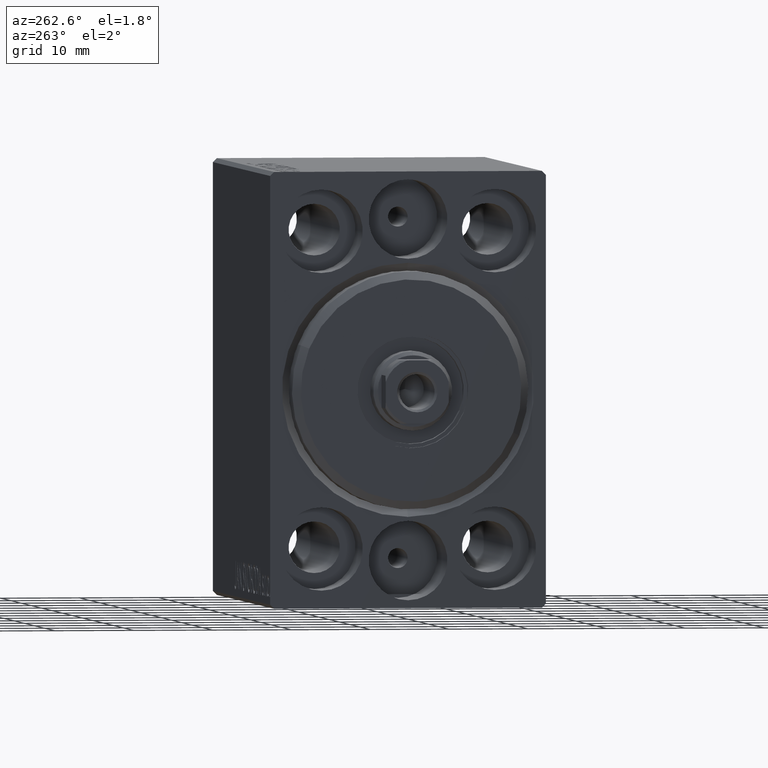
[diagram: clean part render]
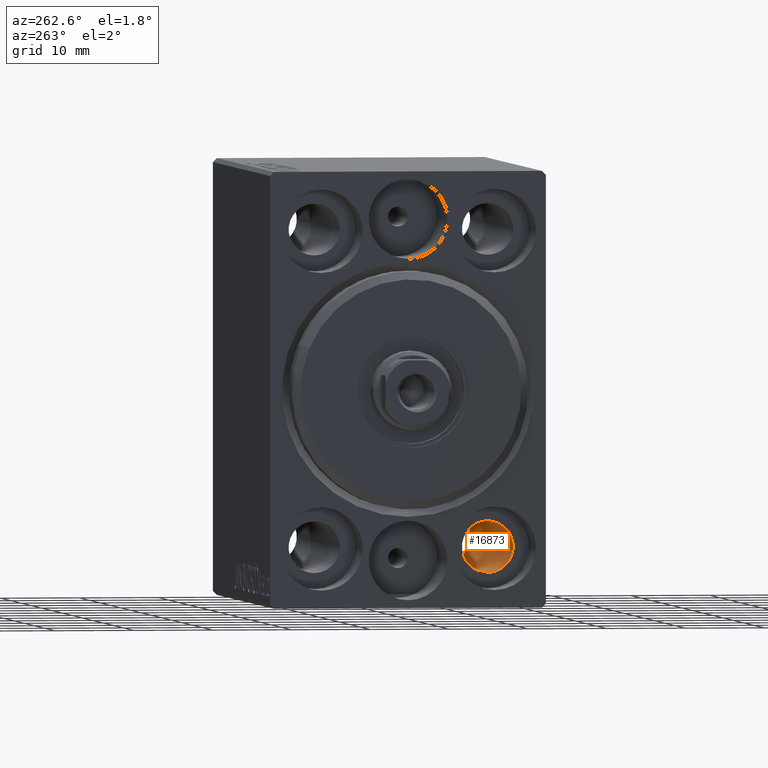
[diagram: same view with one face highlighted and labeled with its STEP entity id]
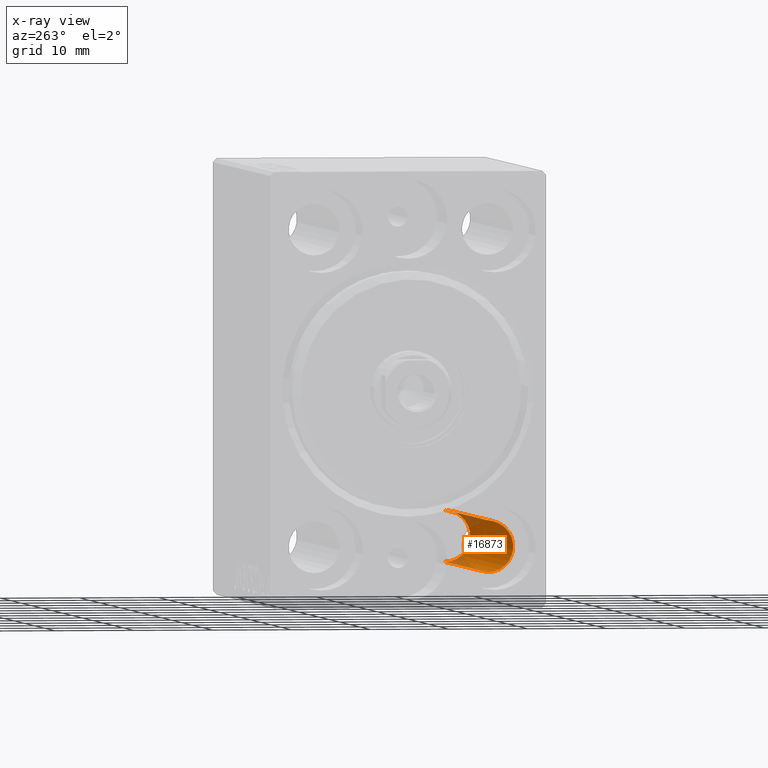
[diagram: x-ray of the same camera — body ghosted, the highlighted face saturated]
A machine part, auxiliary view. The second image highlights one B-rep face of the part: STEP entity #16873.
The next image is the same camera in x-ray: the body ghosted, the highlighted face saturated — about 14% of this face is hidden behind the body in this view.
In plain terms, the highlighted cylindrical surface (edge-blend (fillet) strip) has radius 3.25 mm, axis along (-1, -0, -0).
Its self-contained STEP definition (entity closure, byte-faithful):
#475 = EDGE_LOOP ( 'NONE', ( #12487, #36079, #25126, #38190 ) ) ;
#2554 = VERTEX_POINT ( 'NONE', #29178 ) ;
#4209 = AXIS2_PLACEMENT_3D ( 'NONE', #5182, #12036, #37977 ) ;
#5182 = CARTESIAN_POINT ( 'NONE',  ( 49.00000000000000000, -11.00000000000000355, -20.00000000000000000 ) ) ;
#5517 = DIRECTION ( 'NONE',  ( -1.000000000000000000, -0.000000000000000000, -0.000000000000000000 ) ) ;
#5936 = EDGE_CURVE ( 'NONE', #8876, #13976, #27878, .T. ) ;
#6214 = CYLINDRICAL_SURFACE ( 'NONE', #42567, 3.249999999999999556 ) ;
#8617 = CARTESIAN_POINT ( 'NONE',  ( 56.00000000000000000, -11.00000000000000355, -23.25000000000000000 ) ) ;
#8876 = VERTEX_POINT ( 'NONE', #30111 ) ;
#11030 = CARTESIAN_POINT ( 'NONE',  ( 56.00000000000000000, -11.00000000000000355, -16.75000000000000000 ) ) ;
#12036 = DIRECTION ( 'NONE',  ( -1.000000000000000000, -0.000000000000000000, -0.000000000000000000 ) ) ;
#12487 = ORIENTED_EDGE ( 'NONE', *, *, #28921, .F. ) ;
#12868 = VECTOR ( 'NONE', #5517, 1000.000000000000000 ) ;
#13976 = VERTEX_POINT ( 'NONE', #32333 ) ;
#16616 = CARTESIAN_POINT ( 'NONE',  ( 56.00000000000000000, -11.00000000000000355, -20.00000000000000000 ) ) ;
#16873 = ADVANCED_FACE ( 'NONE', ( #30796 ), #6214, .F. ) ;
#17137 = EDGE_CURVE ( 'NONE', #2554, #42022, #35870, .T. ) ;
#22383 = DIRECTION ( 'NONE',  ( -1.000000000000000000, 0.000000000000000000, 0.000000000000000000 ) ) ;
#25126 = ORIENTED_EDGE ( 'NONE', *, *, #27816, .T. ) ;
#26817 = DIRECTION ( 'NONE',  ( -1.000000000000000000, -0.000000000000000000, -0.000000000000000000 ) ) ;
#27620 = CIRCLE ( 'NONE', #42482, 3.249999999999999556 ) ;
#27816 = EDGE_CURVE ( 'NONE', #42022, #13976, #27620, .T. ) ;
#27878 = LINE ( 'NONE', #11030, #40968 ) ;
#28921 = EDGE_CURVE ( 'NONE', #2554, #8876, #38183, .T. ) ;
#29178 = CARTESIAN_POINT ( 'NONE',  ( 49.00000000000000000, -11.00000000000000355, -23.25000000000000000 ) ) ;
#30111 = CARTESIAN_POINT ( 'NONE',  ( 49.00000000000000000, -11.00000000000000355, -16.75000000000000000 ) ) ;
#30796 = FACE_OUTER_BOUND ( 'NONE', #475, .T. ) ;
#32333 = CARTESIAN_POINT ( 'NONE',  ( 6.999999999999999112, -11.00000000000000355, -16.75000000000000000 ) ) ;
#33898 = DIRECTION ( 'NONE',  ( 0.000000000000000000, 0.000000000000000000, 1.000000000000000000 ) ) ;
#35246 = CARTESIAN_POINT ( 'NONE',  ( 6.999999999999999112, -11.00000000000000355, -20.00000000000000000 ) ) ;
#35783 = CARTESIAN_POINT ( 'NONE',  ( 6.999999999999999112, -11.00000000000000355, -23.25000000000000000 ) ) ;
#35870 = LINE ( 'NONE', #8617, #12868 ) ;
#36079 = ORIENTED_EDGE ( 'NONE', *, *, #17137, .T. ) ;
#37844 = DIRECTION ( 'NONE',  ( -1.000000000000000000, -0.000000000000000000, -0.000000000000000000 ) ) ;
#37977 = DIRECTION ( 'NONE',  ( 0.000000000000000000, 0.000000000000000000, -1.000000000000000000 ) ) ;
#38183 = CIRCLE ( 'NONE', #4209, 3.249999999999999556 ) ;
#38190 = ORIENTED_EDGE ( 'NONE', *, *, #5936, .F. ) ;
#40968 = VECTOR ( 'NONE', #37844, 1000.000000000000000 ) ;
#42022 = VERTEX_POINT ( 'NONE', #35783 ) ;
#42482 = AXIS2_PLACEMENT_3D ( 'NONE', #35246, #22383, #42552 ) ;
#42552 = DIRECTION ( 'NONE',  ( 0.000000000000000000, 0.000000000000000000, 1.000000000000000000 ) ) ;
#42567 = AXIS2_PLACEMENT_3D ( 'NONE', #16616, #26817, #33898 ) ;